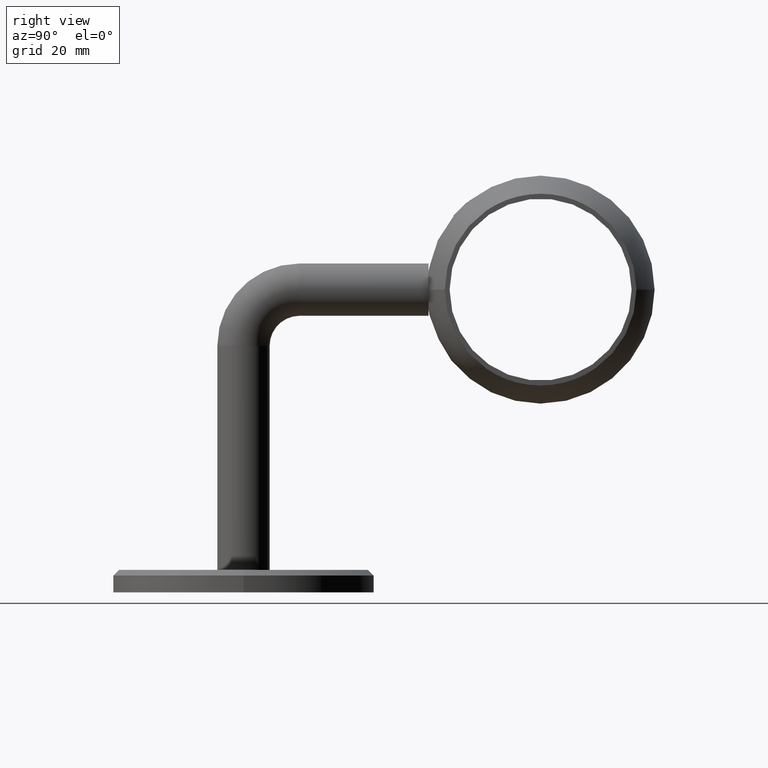
[diagram: clean part render]
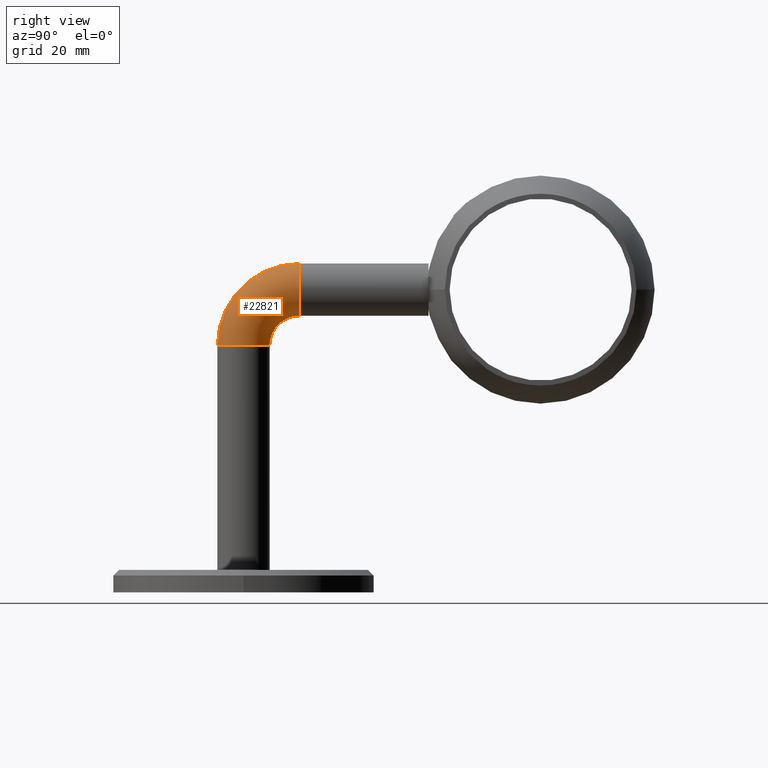
[diagram: same view with one face highlighted and labeled with its STEP entity id]
A machine part, right view. The second image highlights one B-rep face of the part: STEP entity #22821.
In plain terms, the highlighted toroidal blend (fillet) surface has major radius 15 mm and minor (blend) radius 7 mm.
Its self-contained STEP definition (entity closure, byte-faithful):
#822 = EDGE_CURVE ( 'NONE', #30744, #12886, #15243, .T. ) ;
#989 = DIRECTION ( 'NONE',  ( -1.000000000000000000, -0.000000000000000000, 0.000000000000000000 ) ) ;
#2563 = EDGE_CURVE ( 'NONE', #30744, #14207, #29974, .T. ) ;
#3441 = CIRCLE ( 'NONE', #6806, 8.000000000000000000 ) ;
#4887 = CARTESIAN_POINT ( 'NONE',  ( 8.572527594031465301E-16, 14.99999999999999289, 67.99999999999997158 ) ) ;
#5228 = ORIENTED_EDGE ( 'NONE', *, *, #2563, .T. ) ;
#5376 = CARTESIAN_POINT ( 'NONE',  ( 0.000000000000000000, 6.999999999999992895, 60.00000000000000711 ) ) ;
#6021 = AXIS2_PLACEMENT_3D ( 'NONE', #16454, #19504, #30284 ) ;
#6054 = CARTESIAN_POINT ( 'NONE',  ( 8.572527594031473190E-16, 14.99999999999999289, 60.00000000000000711 ) ) ;
#6408 = DIRECTION ( 'NONE',  ( 0.000000000000000000, 0.000000000000000000, 1.000000000000000000 ) ) ;
#6806 = AXIS2_PLACEMENT_3D ( 'NONE', #6054, #29979, #19209 ) ;
#6837 = EDGE_CURVE ( 'NONE', #14207, #19634, #3441, .T. ) ;
#7317 = EDGE_LOOP ( 'NONE', ( #29481, #5228, #27117, #31843 ) ) ;
#8105 = DIRECTION ( 'NONE',  ( 0.000000000000000000, 1.000000000000000000, 6.123233995736766036E-17 ) ) ;
#11746 = TOROIDAL_SURFACE ( 'NONE', #11809, 15.00000000000000000, 7.000000000000000000 ) ;
#11809 = AXIS2_PLACEMENT_3D ( 'NONE', #33399, #989, #6408 ) ;
#12886 = VERTEX_POINT ( 'NONE', #13486 ) ;
#13356 = AXIS2_PLACEMENT_3D ( 'NONE', #19018, #8105, #34850 ) ;
#13486 = CARTESIAN_POINT ( 'NONE',  ( 0.000000000000000000, 14.99999999999999289, 81.99999999999998579 ) ) ;
#14207 = VERTEX_POINT ( 'NONE', #5376 ) ;
#15243 = CIRCLE ( 'NONE', #6021, 22.00000000000000000 ) ;
#16454 = CARTESIAN_POINT ( 'NONE',  ( 0.000000000000000000, 14.99999999999999289, 60.00000000000000711 ) ) ;
#19018 = CARTESIAN_POINT ( 'NONE',  ( 0.000000000000000000, 14.99999999999999289, 74.99999999999998579 ) ) ;
#19209 = DIRECTION ( 'NONE',  ( 0.000000000000000000, 0.000000000000000000, 1.000000000000000000 ) ) ;
#19504 = DIRECTION ( 'NONE',  ( -1.000000000000000000, -0.000000000000000000, 0.000000000000000000 ) ) ;
#19634 = VERTEX_POINT ( 'NONE', #4887 ) ;
#19694 = CARTESIAN_POINT ( 'NONE',  ( 0.000000000000000000, -6.938893903907228378E-15, 60.00000000000000711 ) ) ;
#20849 = EDGE_CURVE ( 'NONE', #12886, #19634, #31697, .T. ) ;
#22821 = ADVANCED_FACE ( 'NONE', ( #33293 ), #11746, .T. ) ;
#27117 = ORIENTED_EDGE ( 'NONE', *, *, #6837, .T. ) ;
#27511 = DIRECTION ( 'NONE',  ( 1.000000000000000000, 0.000000000000000000, 0.000000000000000000 ) ) ;
#28157 = AXIS2_PLACEMENT_3D ( 'NONE', #19694, #30705, #27511 ) ;
#29481 = ORIENTED_EDGE ( 'NONE', *, *, #822, .F. ) ;
#29974 = CIRCLE ( 'NONE', #28157, 7.000000000000000000 ) ;
#29979 = DIRECTION ( 'NONE',  ( -1.000000000000000000, -0.000000000000000000, 0.000000000000000000 ) ) ;
#30284 = DIRECTION ( 'NONE',  ( 0.000000000000000000, 0.000000000000000000, 1.000000000000000000 ) ) ;
#30705 = DIRECTION ( 'NONE',  ( 0.000000000000000000, 0.000000000000000000, 1.000000000000000000 ) ) ;
#30744 = VERTEX_POINT ( 'NONE', #32380 ) ;
#31697 = CIRCLE ( 'NONE', #13356, 7.000000000000000000 ) ;
#31843 = ORIENTED_EDGE ( 'NONE', *, *, #20849, .F. ) ;
#32380 = CARTESIAN_POINT ( 'NONE',  ( 8.572527594031476148E-16, -7.000000000000007105, 60.00000000000000711 ) ) ;
#33293 = FACE_OUTER_BOUND ( 'NONE', #7317, .T. ) ;
#33399 = CARTESIAN_POINT ( 'NONE',  ( 0.000000000000000000, 14.99999999999999289, 60.00000000000000711 ) ) ;
#34850 = DIRECTION ( 'NONE',  ( 1.000000000000000000, 0.000000000000000000, 0.000000000000000000 ) ) ;